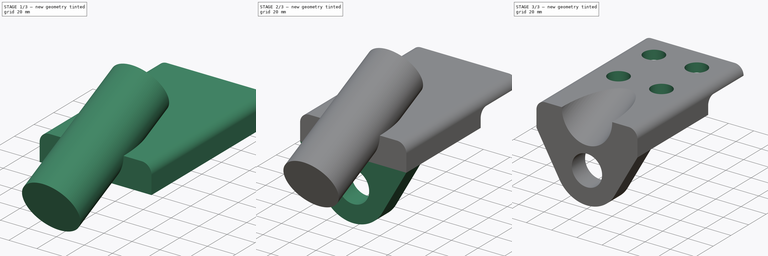
[diagram: build sequence overview — one tinted view per stage of 3, left to right]
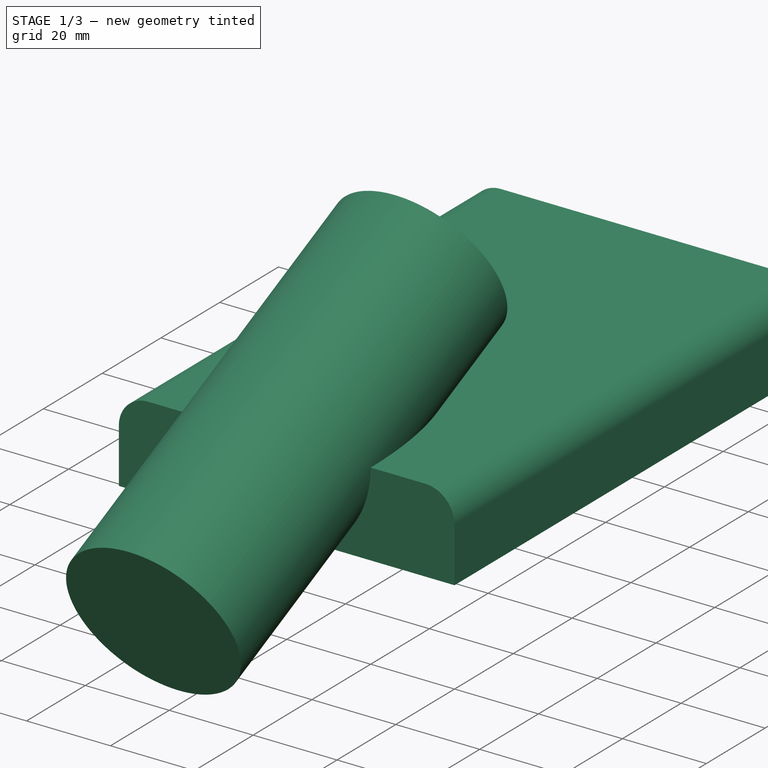
[diagram: stage 1 of 3 — iso view after this stage's code; geometry added in this stage tinted green]
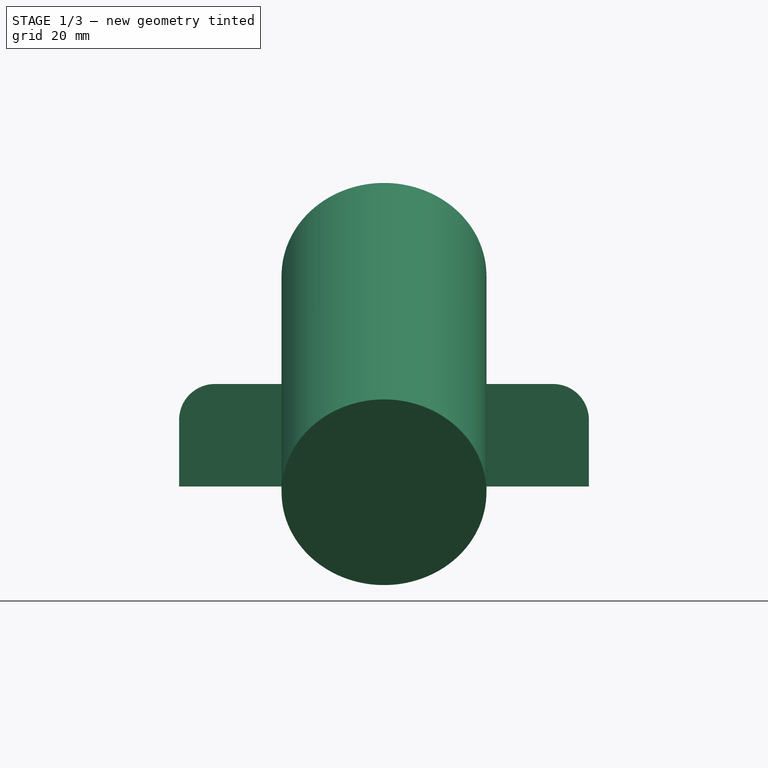
[diagram: stage 1 of 3 — front view after this stage's code; geometry added in this stage tinted green]
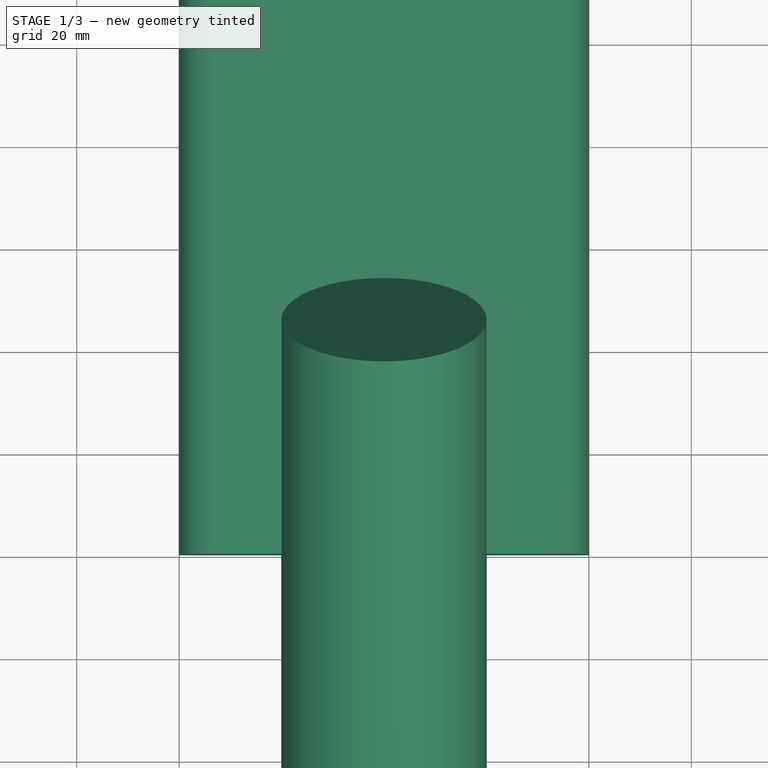
[diagram: stage 1 of 3 — top view after this stage's code; geometry added in this stage tinted green]
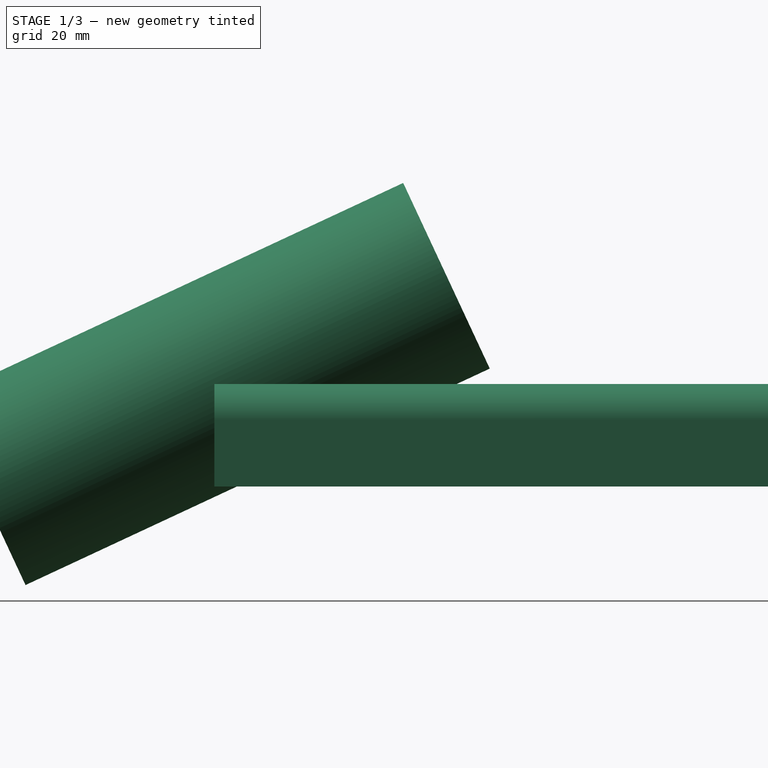
[diagram: stage 1 of 3 — right view after this stage's code; geometry added in this stage tinted green]
FCSTD DOCUMENT  (FreeCAD 0.14R3702 (Git))
Label: ejer15
License: CC-BY 3.0
LicenseURL: http://creativecommons.org/licenses/by/3.0/
objects: Sketcher::SketchObject×4, PartDesign::Pad×2, PartDesign::Pocket×2, Part::Cylinder×1, Part::Cut×1
note: 14 computed .brp shape members not serialized (recipe doc carries the construction recipe); baked Part::Feature solids carry a one-line shape summary decoded from their .brp

FEATURE [Sketcher::SketchObject] Sketch
  Placement = pos=(0,0,0) rot=(1,0,0;1.5708rad)
  sketch-geometry (6):
    g0: LineSegment StartX=-33 StartY=20 StartZ=0 EndX=33 EndY=20 EndZ=0
    g1: LineSegment StartX=40 StartY=13 StartZ=0 EndX=40 EndY=0 EndZ=0
    g2: LineSegment StartX=40 StartY=0 StartZ=0 EndX=-40 EndY=0 EndZ=0
    g3: LineSegment StartX=-40 StartY=0 StartZ=0 EndX=-40 EndY=13 EndZ=0
    g4: ArcOfCircle CenterX=-33 CenterY=13 CenterZ=0 NormalX=0 NormalY=0 NormalZ=1 Radius=7 StartAngle=1.5708 EndAngle=3.14159
    g5: ArcOfCircle CenterX=33 CenterY=13 CenterZ=0 NormalX=0 NormalY=0 NormalZ=1 Radius=7 StartAngle=0 EndAngle=1.5708
  constraints (16):
    c: Coincident(g1,g2)
    c: Coincident(g2,g3)
    c: Horizontal(g0)
    c: Horizontal(g2)
    c: Vertical(g1)
    c: Vertical(g3)
    c: DistanceX(g2) = -80
    c: PointOnObject(g1,g-1)
    c: Symmetric(g1,g2,g-2)
    c: Tangent(g0,g4)
    c: Tangent(g3,g4)
    c: Tangent(g0,g5)
    c: Tangent(g1,g5)
    c: Radius(g4) = 7
    c: Radius(g5) = 7
    c: DistanceY(g-1,g0) = 20
FEATURE [PartDesign::Pad] Pad
  Length = 120
  Length2 = 100
  Placement = pos=(0,0,0) rot=(1,0,0;1.5708rad)
  Reversed = true
  Sketch = -> Sketch
  Type = 0
FEATURE [Part::Cylinder] Cylinder  label="Cilindro"
  Angle = 360
  Height = 100
  Placement = pos=(0,-45.3154,-1.13091) rot=(1,0,0;5.14872rad)
  Radius = 20
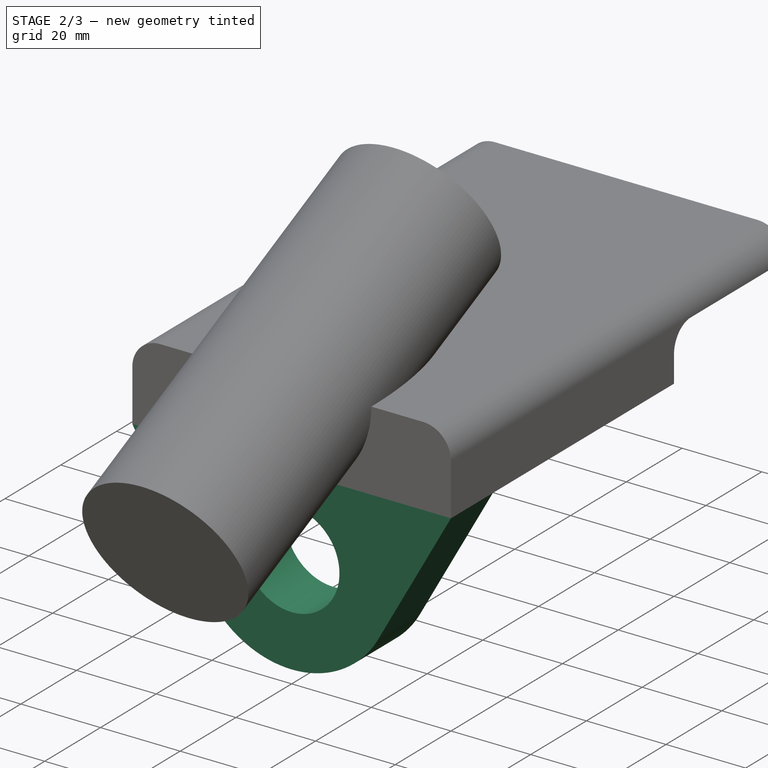
[diagram: stage 2 of 3 — iso view after this stage's code; geometry added in this stage tinted green]
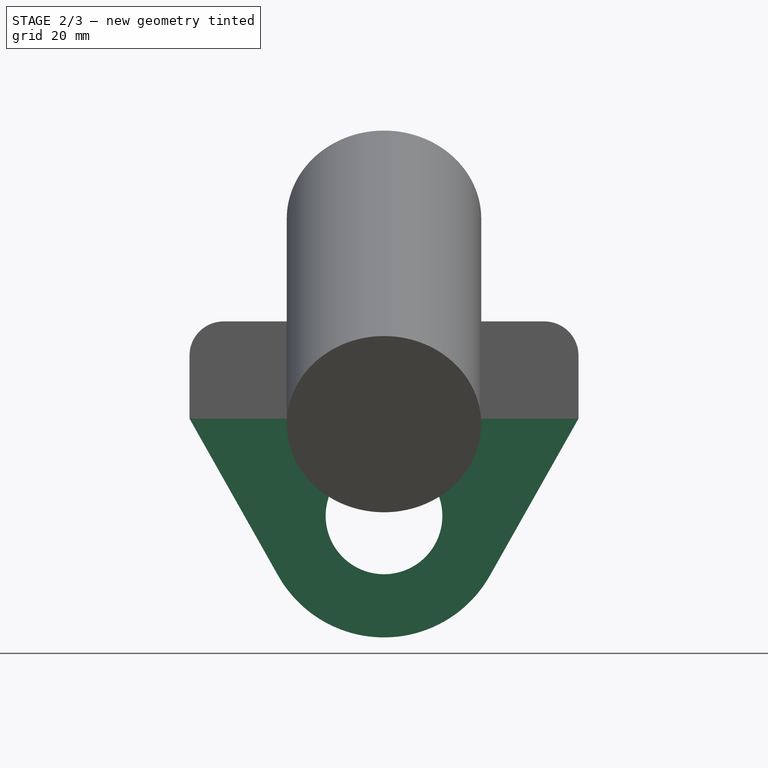
[diagram: stage 2 of 3 — front view after this stage's code; geometry added in this stage tinted green]
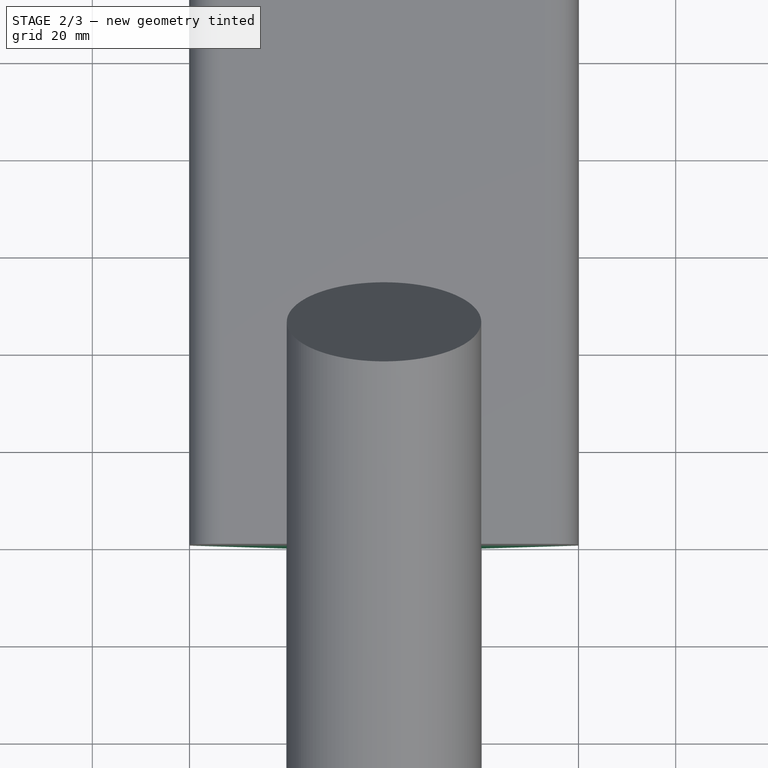
[diagram: stage 2 of 3 — top view after this stage's code; geometry added in this stage tinted green]
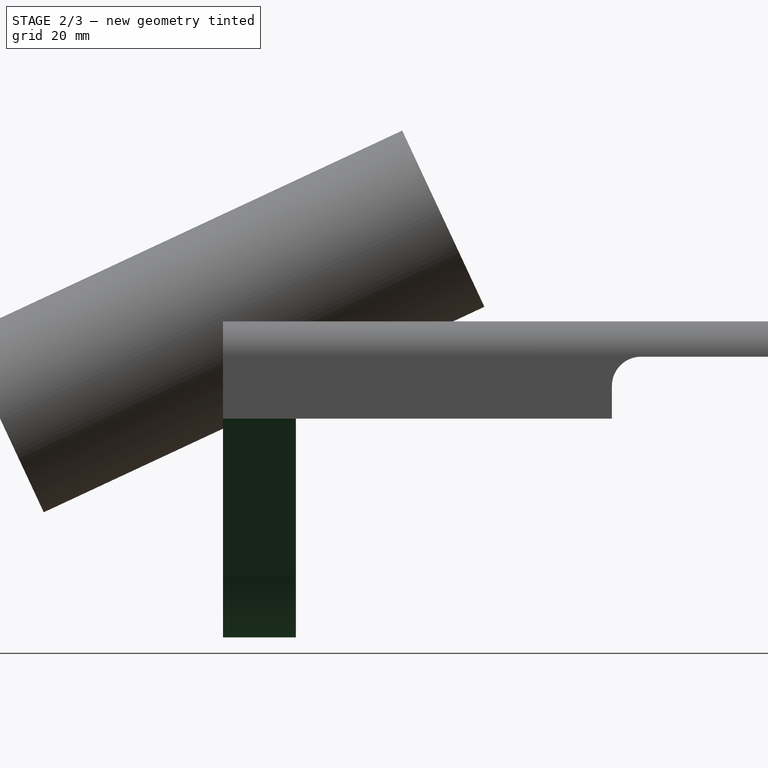
[diagram: stage 2 of 3 — right view after this stage's code; geometry added in this stage tinted green]
FEATURE [Sketcher::SketchObject] Sketch002
  Placement = pos=(40,0,0) rot=(0.707107,0,0.707107;3.14159rad)
  Support = -> Pad [Face1]
  sketch-geometry (5):
    g0: LineSegment StartX=0 StartY=-80 StartZ=0 EndX=6.73891 EndY=-80 EndZ=0
    g1: LineSegment StartX=12.7389 StartY=-86 StartZ=0 EndX=12.7389 EndY=-134.293 EndZ=0
    g2: LineSegment StartX=12.7389 StartY=-134.293 StartZ=0 EndX=0 EndY=-134.293 EndZ=0
    g3: LineSegment StartX=0 StartY=-134.293 StartZ=0 EndX=0 EndY=-80 EndZ=0
    g4: ArcOfCircle CenterX=6.73891 CenterY=-86 CenterZ=0 NormalX=0 NormalY=0 NormalZ=1 Radius=6 StartAngle=0 EndAngle=1.5708
  constraints (12):
    c: Coincident(g1,g2)
    c: Coincident(g2,g3)
    c: Coincident(g3,g0)
    c: Horizontal(g0)
    c: Horizontal(g2)
    c: Vertical(g1)
    c: Vertical(g3)
    c: PointOnObject(g0,g-2)
    c: DistanceY(g-1,g0) = -80
    c: Tangent(g1,g4)
    c: Tangent(g0,g4)
    c: Radius(g4) = 6
FEATURE [PartDesign::Pocket] Pocket
  Length = 5
  Placement = pos=(0,0,0) rot=(1,0,0;1.5708rad)
  Sketch = -> Sketch002
  Type = 1
FEATURE [Sketcher::SketchObject] Sketch003
  ExternalGeometry = -> [Pocket]
  Placement = pos=(0,0,0) rot=(1,0,0;1.5708rad)
  Support = -> Pocket [Face2]
  sketch-geometry (5):
    g0: LineSegment StartX=-40 StartY=0 StartZ=0 EndX=40 EndY=0 EndZ=0
    g1: LineSegment StartX=40 StartY=0 StartZ=0 EndX=21.7703 EndY=-32.2905 EndZ=0
    g2: LineSegment StartX=-40 StartY=0 StartZ=0 EndX=-21.7703 EndY=-32.2905 EndZ=0
    g3: Circle CenterX=0 CenterY=-20 CenterZ=0 NormalX=0 NormalY=0 NormalZ=1 Radius=12
    g4: ArcOfCircle CenterX=0 CenterY=-20 CenterZ=0 NormalX=0 NormalY=0 NormalZ=1 Radius=25 StartAngle=3.65554 EndAngle=5.76924
  constraints (13):
    c: Coincident(g0,g-3)
    c: Coincident(g0,g-3)
    c: Coincident(g2,g0)
    c: PointOnObject(g3,g-2)
    c: Radius(g3) = 12
    c: DistanceY(g-4,g3) = -40
    c: Coincident(g4,g2)
    c: Tangent(g4,g2)
    c: Coincident(g3,g4)
    c: Tangent(g1,g4)
    c: Coincident(g1,g0)
    c: Coincident(g1,g4)
    c: Radius(g4) = 25
FEATURE [PartDesign::Pad] Pad001
  Length = 15
  Length2 = 100
  Placement = pos=(0,0,0) rot=(1,0,0;1.5708rad)
  Reversed = true
  Sketch = -> Sketch003
  Type = 0
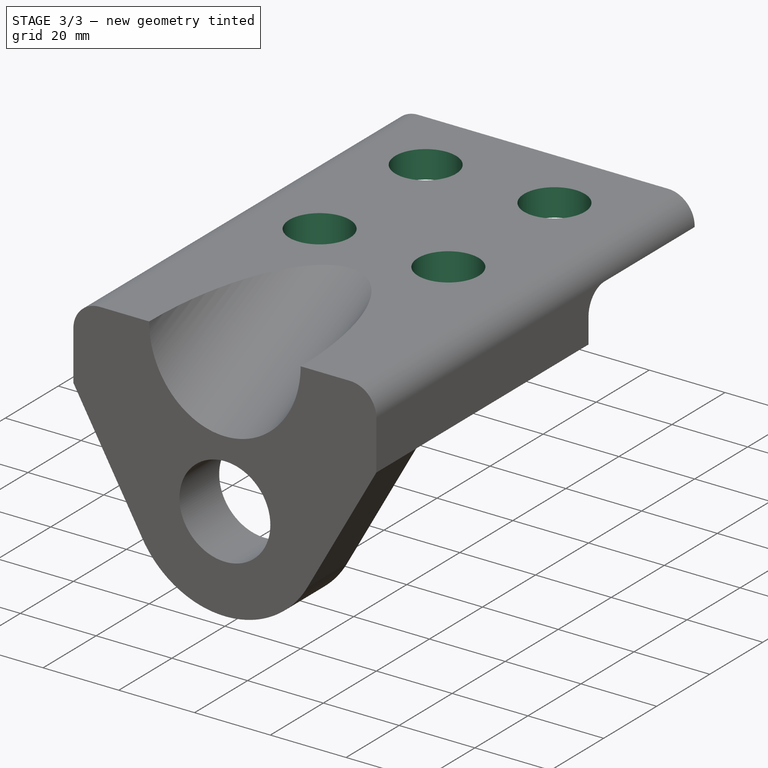
[diagram: stage 3 of 3 — iso view after this stage's code; geometry added in this stage tinted green]
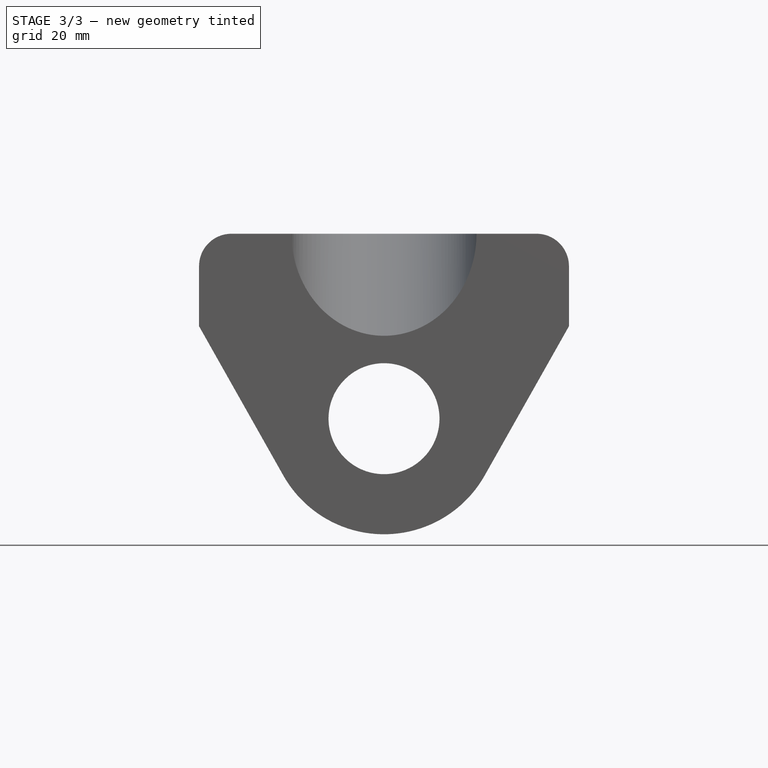
[diagram: stage 3 of 3 — front view after this stage's code; geometry added in this stage tinted green]
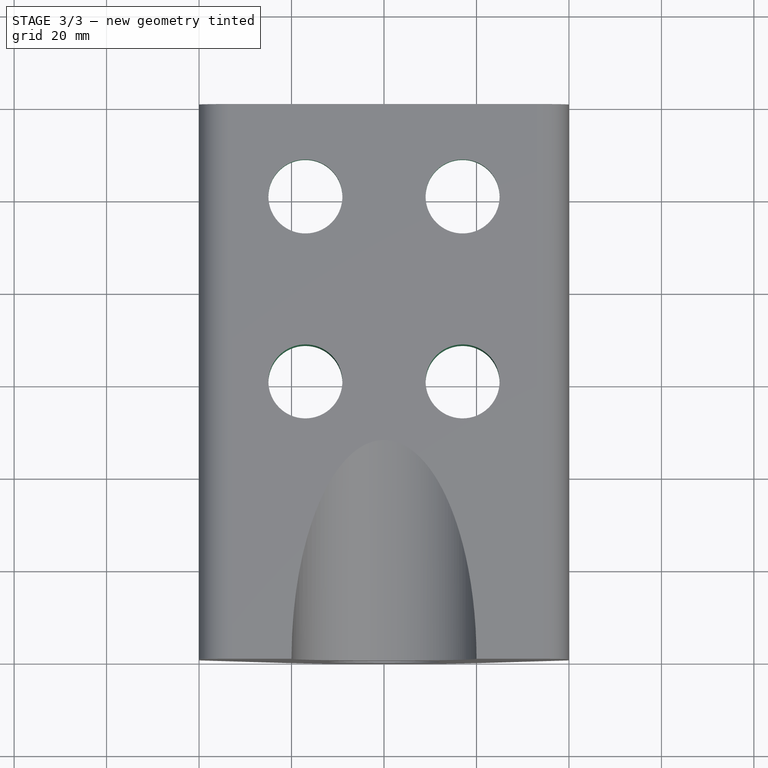
[diagram: stage 3 of 3 — top view after this stage's code; geometry added in this stage tinted green]
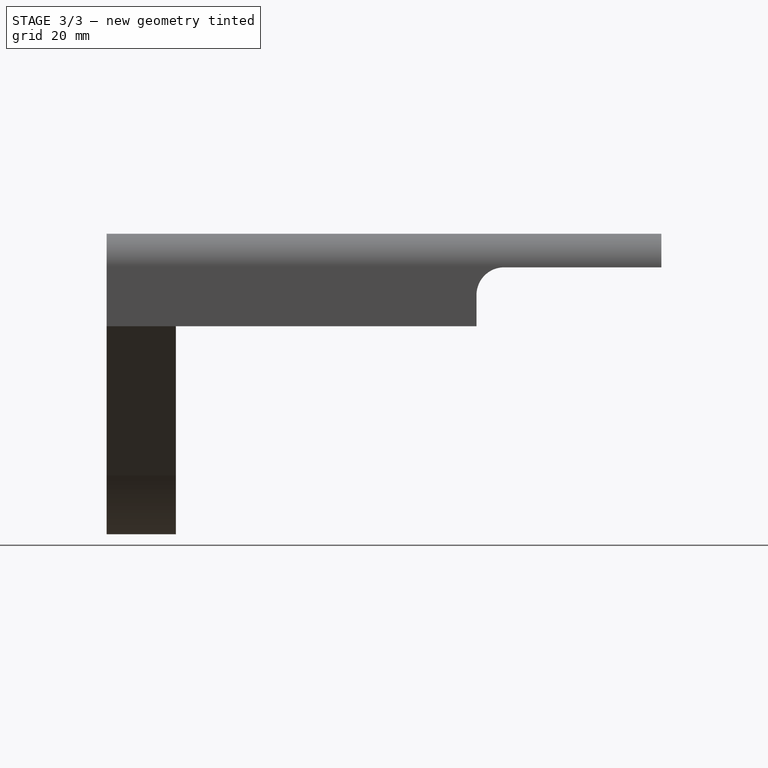
[diagram: stage 3 of 3 — right view after this stage's code; geometry added in this stage tinted green]
FEATURE [Sketcher::SketchObject] Sketch004
  ExternalGeometry = -> [Pad001]
  Placement = pos=(0,0,20) rot=(0,0,1;3.14159rad)
  Support = -> Pad001 [Face3]
  sketch-geometry (4):
    g0: Circle CenterX=17 CenterY=-100 CenterZ=0 NormalX=0 NormalY=0 NormalZ=1 Radius=8
    g1: Circle CenterX=-17 CenterY=-100 CenterZ=0 NormalX=0 NormalY=0 NormalZ=1 Radius=8
    g2: Circle CenterX=-17 CenterY=-60 CenterZ=0 NormalX=0 NormalY=0 NormalZ=1 Radius=8
    g3: Circle CenterX=17 CenterY=-60 CenterZ=0 NormalX=0 NormalY=0 NormalZ=1 Radius=8
  constraints (12):
    c: Equal(g0,g1)
    c: Equal(g1,g2)
    c: Equal(g2,g3)
    c: Radius(g1) = 8
    c: DistanceX(g-5,g0) = -23
    c: DistanceX(g1,g0) = 34
    c: DistanceY(g0,g3) = 40
    c: DistanceY(g1,g2) = 40
    c: DistanceY(g1,g-5) = -20
    c: DistanceY(g0,g-4) = -20
    c: DistanceX(g2,g3) = 34
    c: DistanceX(g-5,g3) = -23
FEATURE [PartDesign::Pocket] Pocket001
  Length = 5
  Placement = pos=(0,0,0) rot=(1,0,0;1.5708rad)
  Sketch = -> Sketch004
  Type = 1
FEATURE [Part::Cut] Cut
  Base = -> Pocket001
  Tool = -> Cylinder
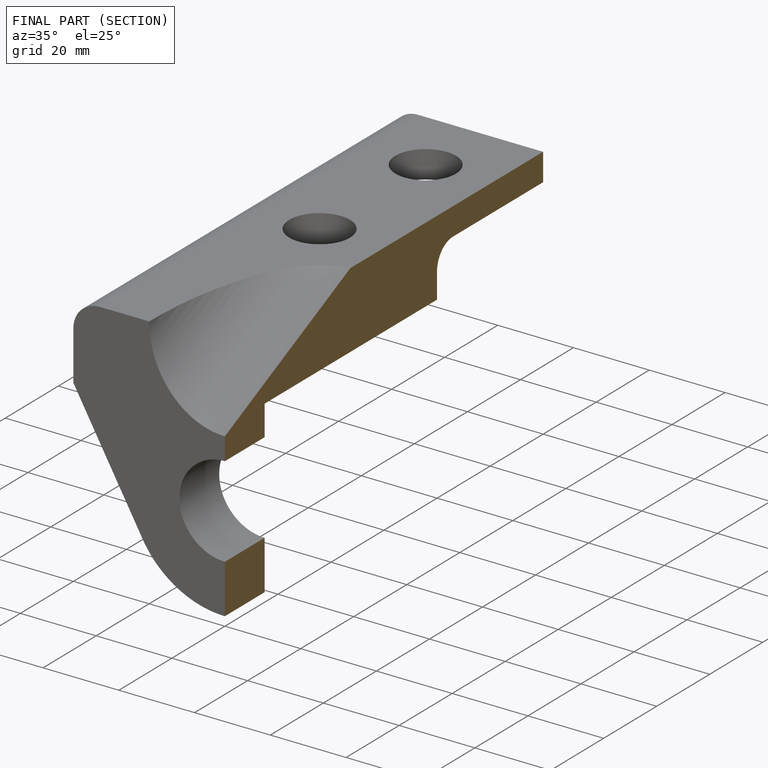
[diagram: finished part — half-section view (interior)]
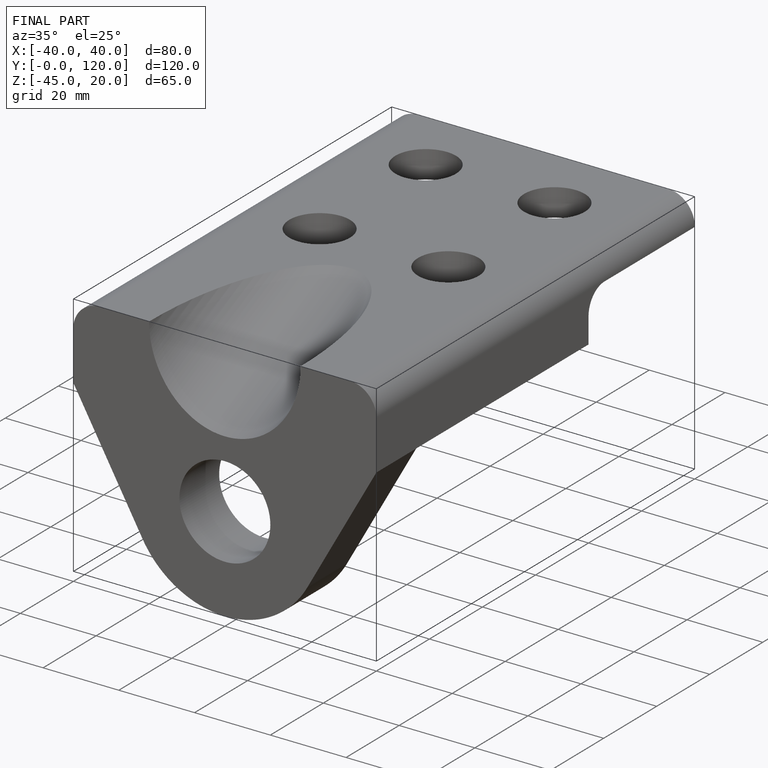
[diagram: finished part — iso view with bounding-box wireframe]
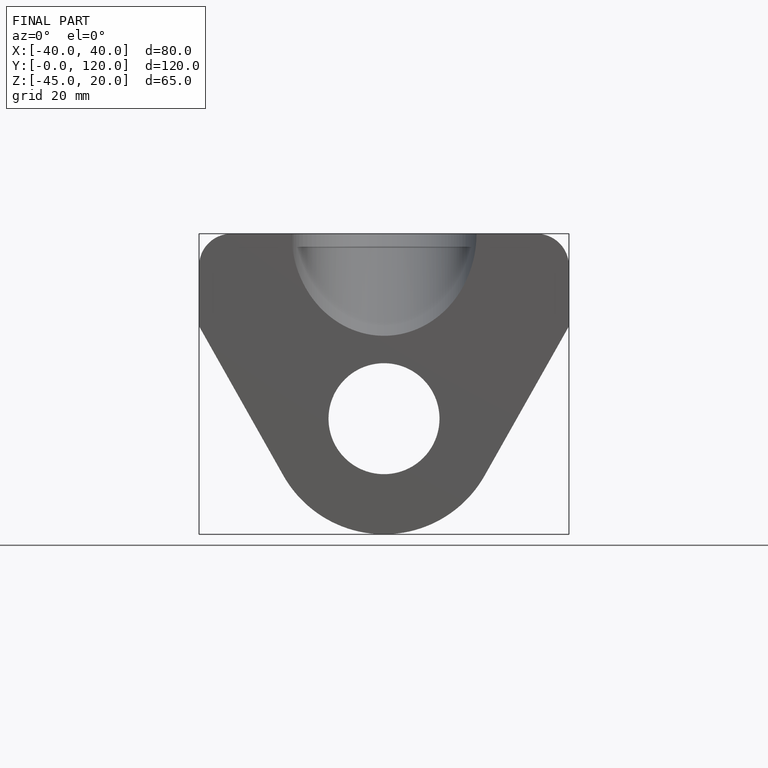
[diagram: finished part — front view with bounding-box wireframe]
